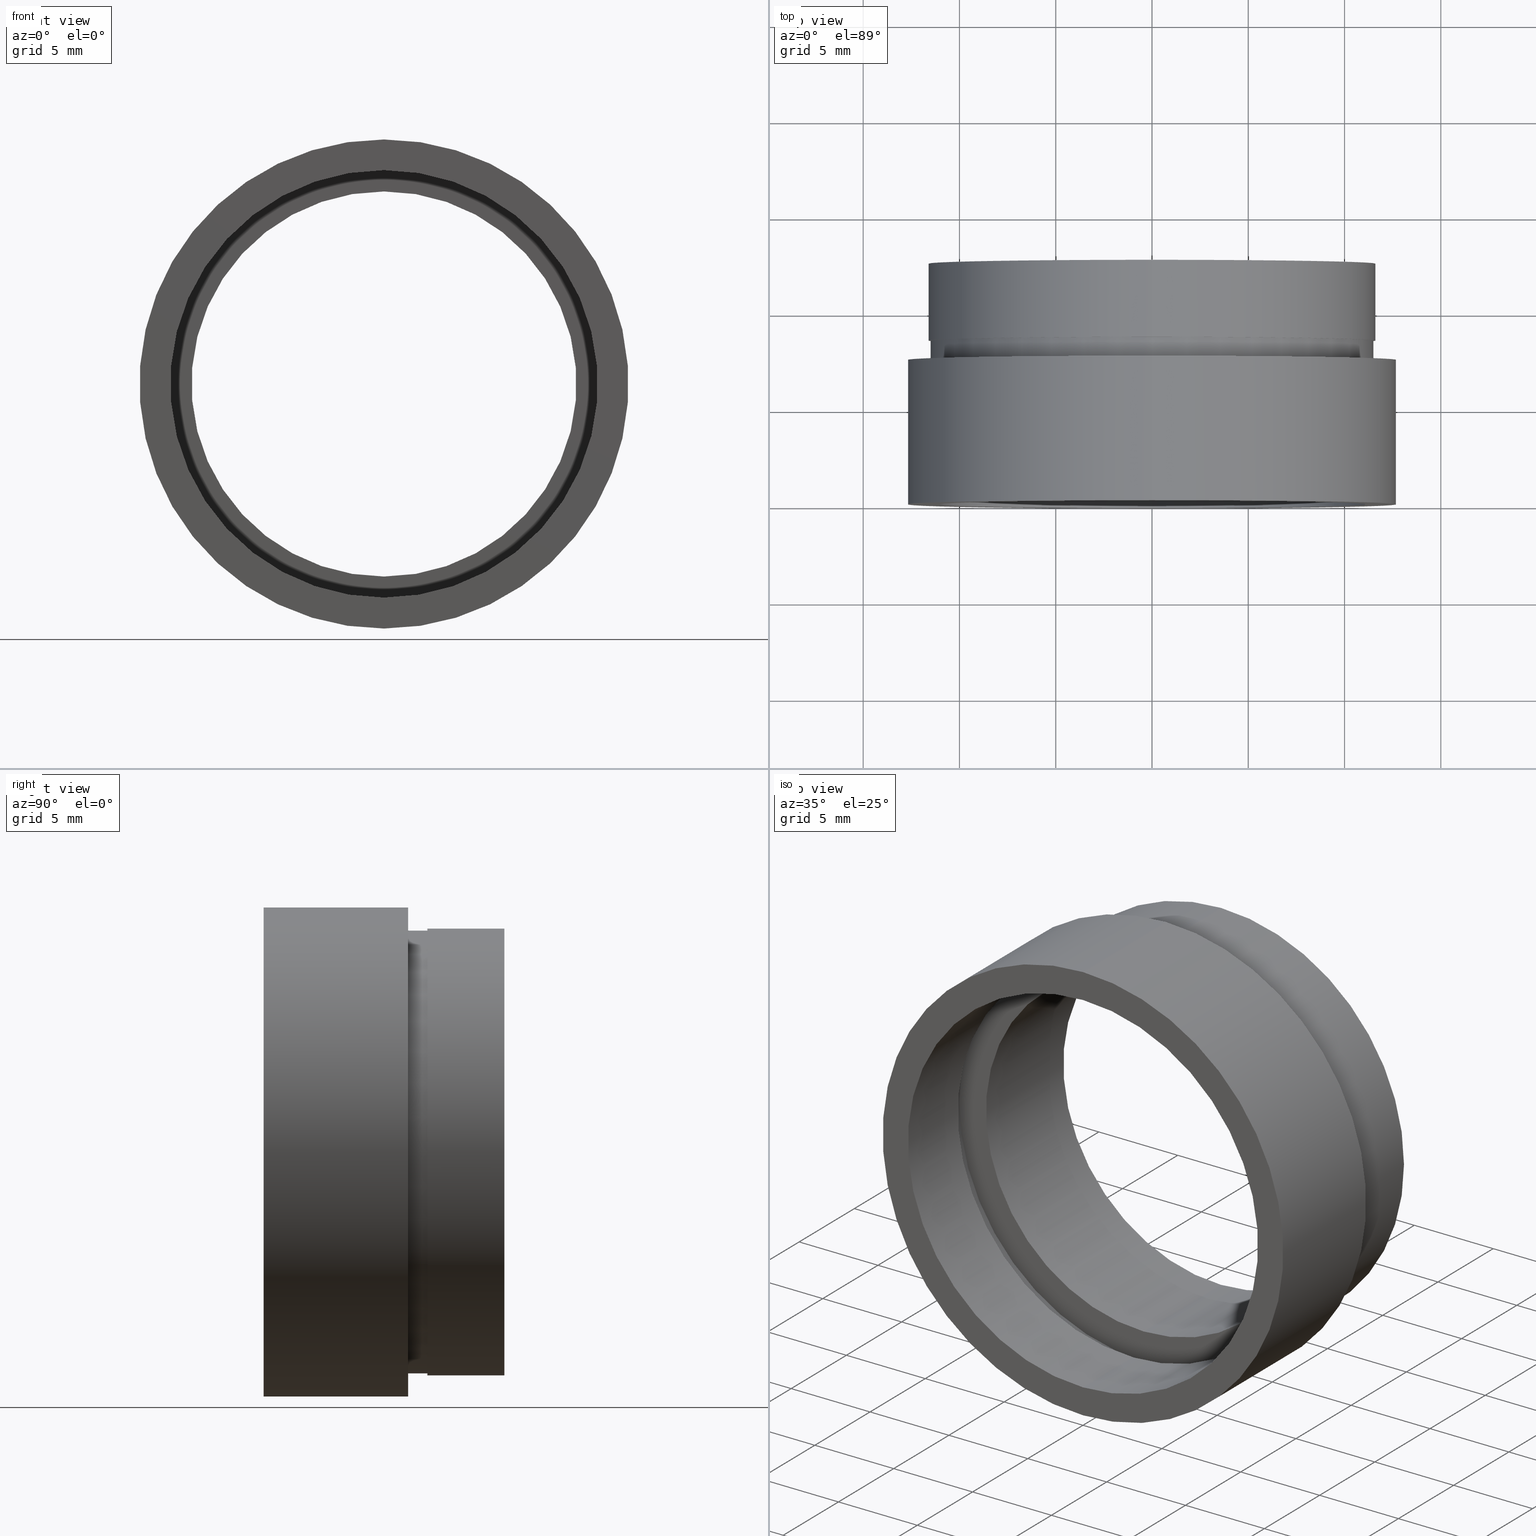
[diagram: canonical four-view strip — front | top / right | iso, engineering-drawing reading convention]
A machine part, canonical four-view strip (front | top / right | iso — engineering-drawing reading convention). The complete STEP part file that produces these views, byte-faithful:
ISO-10303-21;
HEADER;
FILE_DESCRIPTION (( 'STEP AP214' ),
    '1' );
FILE_NAME ('503060.STEP',
    '2019-09-09T02:10:41',
    ( '' ),
    ( '' ),
    'SwSTEP 2.0',
    'SolidWorks 2016',
    '' );
FILE_SCHEMA (( 'AUTOMOTIVE_DESIGN' ));
ENDSEC;

DATA;
#1 = CARTESIAN_POINT ( 'NONE',  ( 0.0000000000000000000, 8.499999999999980500, 0.0000000000000000000 ) ) ;
#2 = ORIENTED_EDGE ( 'NONE', *, *, #131, .T. ) ;
#3 = CARTESIAN_POINT ( 'NONE',  ( 0.0000000000000000000, 12.49999999999998400, 10.00000000000002000 ) ) ;
#4 = SURFACE_STYLE_FILL_AREA ( #146 ) ;
#5 = CARTESIAN_POINT ( 'NONE',  ( 0.0000000000000000000, 5.499999999999976900, 0.0000000000000000000 ) ) ;
#6 = DIRECTION ( 'NONE',  ( 0.0000000000000000000, 0.0000000000000000000, 1.000000000000000000 ) ) ;
#7 = EDGE_CURVE ( 'NONE', #326, #534, #306, .T. ) ;
#8 = CARTESIAN_POINT ( 'NONE',  ( 1.555301434917141000E-015, -2.775557561562891400E-014, -12.70000000000002100 ) ) ;
#9 = ORIENTED_EDGE ( 'NONE', *, *, #207, .T. ) ;
#10 = DIRECTION ( 'NONE',  ( 0.0000000000000000000, 0.0000000000000000000, 1.000000000000000000 ) ) ;
#11 = DIRECTION ( 'NONE',  ( -0.0000000000000000000, 1.000000000000000000, -0.0000000000000000000 ) ) ;
#12 = PRODUCT_DEFINITION ( 'δ֪', '', #205, #280 ) ;
#13 = UNCERTAINTY_MEASURE_WITH_UNIT (LENGTH_MEASURE( 1.000000000000000100E-005 ), #67, 'distance_accuracy_value', 'NONE');
#14 =( NAMED_UNIT ( * ) PLANE_ANGLE_UNIT ( ) SI_UNIT ( $, .RADIAN. ) );
#15 = EDGE_LOOP ( 'NONE', ( #272, #212 ) ) ;
#16 = AXIS2_PLACEMENT_3D ( 'NONE', #159, #504, #552 ) ;
#17 = ORIENTED_EDGE ( 'NONE', *, *, #617, .F. ) ;
#18 = CARTESIAN_POINT ( 'NONE',  ( 1.555301434917140800E-015, 7.499999999999978700, -12.70000000000001900 ) ) ;
#19 = EDGE_CURVE ( 'NONE', #468, #500, #156, .T. ) ;
#20 = CARTESIAN_POINT ( 'NONE',  ( 0.0000000000000000000, 4.499999999999976000, 0.0000000000000000000 ) ) ;
#21 = DIRECTION ( 'NONE',  ( 0.0000000000000000000, 0.0000000000000000000, 1.000000000000000000 ) ) ;
#22 = ORIENTED_EDGE ( 'NONE', *, *, #31, .F. ) ;
#23 = AXIS2_PLACEMENT_3D ( 'NONE', #346, #95, #395 ) ;
#24 = APPLICATION_PROTOCOL_DEFINITION ( 'draft international standard', 'automotive_design', 1998, #371 ) ;
#25 = EDGE_CURVE ( 'NONE', #532, #213, #270, .T. ) ;
#26 = ORIENTED_EDGE ( 'NONE', *, *, #606, .F. ) ;
#27 = CYLINDRICAL_SURFACE ( 'NONE', #613, 11.50000000000001800 ) ;
#28 = ORIENTED_EDGE ( 'NONE', *, *, #402, .T. ) ;
#29 = CARTESIAN_POINT ( 'NONE',  ( 0.0000000000000000000, 161.3761669434274500, 0.0000000000000000000 ) ) ;
#30 = STYLED_ITEM ( 'NONE', ( #161 ), #393 ) ;
#31 = EDGE_CURVE ( 'NONE', #213, #334, #287, .T. ) ;
#32 = ORIENTED_EDGE ( 'NONE', *, *, #366, .T. ) ;
#33 = ORIENTED_EDGE ( 'NONE', *, *, #537, .T. ) ;
#34 = STYLED_ITEM ( 'NONE', ( #85 ), #144 ) ;
#35 = DIRECTION ( 'NONE',  ( -0.0000000000000000000, 1.000000000000000000, -0.0000000000000000000 ) ) ;
#36 = MECHANICAL_DESIGN_GEOMETRIC_PRESENTATION_REPRESENTATION (  '', ( #258 ), #316 ) ;
#37 = EDGE_LOOP ( 'NONE', ( #439, #474 ) ) ;
#38 = ORIENTED_EDGE ( 'NONE', *, *, #207, .F. ) ;
#39 = SURFACE_SIDE_STYLE ('',( #57 ) ) ;
#40 = EDGE_LOOP ( 'NONE', ( #392, #56, #572, #463 ) ) ;
#41 = SURFACE_STYLE_USAGE ( .BOTH. , #252 ) ;
#42 = FACE_OUTER_BOUND ( 'NONE', #352, .T. ) ;
#43 = EDGE_CURVE ( 'NONE', #534, #543, #525, .T. ) ;
#44 = PLANE ( 'NONE',  #245 ) ;
#45 = ADVANCED_FACE ( 'NONE', ( #398, #414 ), #554, .F. ) ;
#46 = CIRCLE ( 'NONE', #415, 11.60000000000001700 ) ;
#47 = CARTESIAN_POINT ( 'NONE',  ( 1.224646799147355400E-015, 12.49999999999998400, -10.00000000000002000 ) ) ;
#48 = VERTEX_POINT ( 'NONE', #610 ) ;
#49 = CARTESIAN_POINT ( 'NONE',  ( 0.0000000000000000000, 8.499999999999980500, 0.0000000000000000000 ) ) ;
#50 = DIRECTION ( 'NONE',  ( -0.0000000000000000000, 1.000000000000000000, -0.0000000000000000000 ) ) ;
#51 = CYLINDRICAL_SURFACE ( 'NONE', #136, 10.00000000000002000 ) ;
#52 =( GEOMETRIC_REPRESENTATION_CONTEXT ( 3 ) GLOBAL_UNCERTAINTY_ASSIGNED_CONTEXT ( ( #581 ) ) GLOBAL_UNIT_ASSIGNED_CONTEXT ( ( #560, #76, #235 ) ) REPRESENTATION_CONTEXT ( 'NONE', 'WORKASPACE' ) );
#53 = ORIENTED_EDGE ( 'NONE', *, *, #399, .F. ) ;
#54 = CARTESIAN_POINT ( 'NONE',  ( 0.0000000000000000000, 161.3761669434274500, 0.0000000000000000000 ) ) ;
#55 = ORIENTED_EDGE ( 'NONE', *, *, #43, .F. ) ;
#56 = ORIENTED_EDGE ( 'NONE', *, *, #63, .T. ) ;
#57 = SURFACE_STYLE_FILL_AREA ( #493 ) ;
#58 = FILL_AREA_STYLE ('',( #462 ) ) ;
#59 = CARTESIAN_POINT ( 'NONE',  ( 0.0000000000000000000, 161.3761669434274500, 11.70000000000001900 ) ) ;
#60 = COLOUR_RGB ( '',1.000000000000000000, 1.000000000000000000, 1.000000000000000000 ) ;
#61 = ORIENTED_EDGE ( 'NONE', *, *, #99, .F. ) ;
#62 = STYLED_ITEM ( 'NONE', ( #622 ), #531 ) ;
#63 = EDGE_CURVE ( 'NONE', #248, #404, #297, .T. ) ;
#64 = DIRECTION ( 'NONE',  ( -0.0000000000000000000, 1.000000000000000000, -0.0000000000000000000 ) ) ;
#65 = VECTOR ( 'NONE', #453, 1000.000000000000000 ) ;
#66 = AXIS2_PLACEMENT_3D ( 'NONE', #379, #327, #73 ) ;
#67 =( LENGTH_UNIT ( ) NAMED_UNIT ( * ) SI_UNIT ( .MILLI., .METRE. ) );
#68 = DIRECTION ( 'NONE',  ( 0.0000000000000000000, -0.0000000000000000000, -1.000000000000000000 ) ) ;
#69 = CIRCLE ( 'NONE', #66, 12.70000000000002100 ) ;
#70 = DIRECTION ( 'NONE',  ( -0.0000000000000000000, 1.000000000000000000, -0.0000000000000000000 ) ) ;
#71 = COLOUR_RGB ( '',1.000000000000000000, 1.000000000000000000, 1.000000000000000000 ) ;
#72 = EDGE_LOOP ( 'NONE', ( #481, #177, #32, #75 ) ) ;
#73 = DIRECTION ( 'NONE',  ( 0.0000000000000000000, 0.0000000000000000000, 1.000000000000000000 ) ) ;
#74 = EDGE_LOOP ( 'NONE', ( #618, #103, #320, #298 ) ) ;
#75 = ORIENTED_EDGE ( 'NONE', *, *, #487, .T. ) ;
#76 =( NAMED_UNIT ( * ) PLANE_ANGLE_UNIT ( ) SI_UNIT ( $, .RADIAN. ) );
#77 = AXIS2_PLACEMENT_3D ( 'NONE', #369, #167, #513 ) ;
#78 = COLOUR_RGB ( '',1.000000000000000000, 1.000000000000000000, 1.000000000000000000 ) ;
#79 = CARTESIAN_POINT ( 'NONE',  ( 0.0000000000000000000, 161.3761669434274500, 10.00000000000002000 ) ) ;
#80 = EDGE_LOOP ( 'NONE', ( #219, #587, #424, #55 ) ) ;
#81 = DIRECTION ( 'NONE',  ( -0.0000000000000000000, 1.000000000000000000, -0.0000000000000000000 ) ) ;
#82 = PRESENTATION_STYLE_ASSIGNMENT (( #218 ) ) ;
#83 = DIRECTION ( 'NONE',  ( 0.0000000000000000000, 0.0000000000000000000, 1.000000000000000000 ) ) ;
#84 = FACE_BOUND ( 'NONE', #37, .T. ) ;
#85 = PRESENTATION_STYLE_ASSIGNMENT (( #124 ) ) ;
#86 = CIRCLE ( 'NONE', #351, 10.00000000000002000 ) ;
#87 = ORIENTED_EDGE ( 'NONE', *, *, #261, .F. ) ;
#88 = ORIENTED_EDGE ( 'NONE', *, *, #485, .T. ) ;
#89 = SURFACE_STYLE_USAGE ( .BOTH. , #480 ) ;
#90 = EDGE_CURVE ( 'NONE', #325, #543, #373, .T. ) ;
#91 = EDGE_CURVE ( 'NONE', #550, #500, #226, .T. ) ;
#92 = DIRECTION ( 'NONE',  ( -0.0000000000000000000, 1.000000000000000000, -0.0000000000000000000 ) ) ;
#93 = DIRECTION ( 'NONE',  ( 0.0000000000000000000, 0.0000000000000000000, 1.000000000000000000 ) ) ;
#94 = ORIENTED_EDGE ( 'NONE', *, *, #461, .T. ) ;
#95 = DIRECTION ( 'NONE',  ( -0.0000000000000000000, 1.000000000000000000, -0.0000000000000000000 ) ) ;
#96 = DIRECTION ( 'NONE',  ( -0.0000000000000000000, 1.000000000000000000, -0.0000000000000000000 ) ) ;
#97 = STYLED_ITEM ( 'NONE', ( #508 ), #442 ) ;
#98 = ADVANCED_FACE ( 'NONE', ( #338, #450 ), #220, .F. ) ;
#99 = EDGE_CURVE ( 'NONE', #580, #340, #592, .T. ) ;
#100 = DIRECTION ( 'NONE',  ( -0.0000000000000000000, 1.000000000000000000, -0.0000000000000000000 ) ) ;
#101 = CYLINDRICAL_SURFACE ( 'NONE', #482, 11.70000000000001900 ) ;
#102 = EDGE_CURVE ( 'NONE', #500, #468, #247, .T. ) ;
#103 = ORIENTED_EDGE ( 'NONE', *, *, #261, .T. ) ;
#104 = ADVANCED_FACE ( 'NONE', ( #511, #115 ), #230, .F. ) ;
#105 =( NAMED_UNIT ( * ) PLANE_ANGLE_UNIT ( ) SI_UNIT ( $, .RADIAN. ) );
#106 = FACE_BOUND ( 'NONE', #547, .T. ) ;
#107 = AXIS2_PLACEMENT_3D ( 'NONE', #406, #267, #464 ) ;
#108 = EDGE_LOOP ( 'NONE', ( #416, #241, #427, #266 ) ) ;
#109 = DIRECTION ( 'NONE',  ( -0.0000000000000000000, 1.000000000000000000, -0.0000000000000000000 ) ) ;
#110 = PRODUCT_CONTEXT ( 'NONE', #371, 'mechanical' ) ;
#111 = DIRECTION ( 'NONE',  ( -0.0000000000000000000, 1.000000000000000000, -0.0000000000000000000 ) ) ;
#112 =( NAMED_UNIT ( * ) PLANE_ANGLE_UNIT ( ) SI_UNIT ( $, .RADIAN. ) );
#113 = CIRCLE ( 'NONE', #384, 11.10000000000001700 ) ;
#114 =( LENGTH_UNIT ( ) NAMED_UNIT ( * ) SI_UNIT ( .MILLI., .METRE. ) );
#115 = FACE_OUTER_BOUND ( 'NONE', #15, .T. ) ;
#116 = COLOUR_RGB ( '',1.000000000000000000, 1.000000000000000000, 1.000000000000000000 ) ;
#117 = PRESENTATION_LAYER_ASSIGNMENT (  '', '', ( #281 ) ) ;
#118 = DIRECTION ( 'NONE',  ( 0.0000000000000000000, 0.0000000000000000000, 1.000000000000000000 ) ) ;
#119 = EDGE_LOOP ( 'NONE', ( #563, #386, #174, #157 ) ) ;
#120 = DIRECTION ( 'NONE',  ( 0.0000000000000000000, -1.000000000000000000, 0.0000000000000000000 ) ) ;
#121 = SURFACE_STYLE_USAGE ( .BOTH. , #608 ) ;
#122 = DIRECTION ( 'NONE',  ( 0.0000000000000000000, 0.0000000000000000000, 1.000000000000000000 ) ) ;
#123 = EDGE_CURVE ( 'NONE', #550, #549, #69, .T. ) ;
#124 = SURFACE_STYLE_USAGE ( .BOTH. , #423 ) ;
#125 = LINE ( 'NONE', #471, #621 ) ;
#126 = ORIENTED_EDGE ( 'NONE', *, *, #123, .T. ) ;
#127 = DIRECTION ( 'NONE',  ( 0.0000000000000000000, 0.0000000000000000000, 1.000000000000000000 ) ) ;
#128 = VERTEX_POINT ( 'NONE', #335 ) ;
#129 = CARTESIAN_POINT ( 'NONE',  ( 0.0000000000000000000, 7.499999999999978700, 0.0000000000000000000 ) ) ;
#130 = AXIS2_PLACEMENT_3D ( 'NONE', #313, #604, #260 ) ;
#131 = EDGE_CURVE ( 'NONE', #128, #360, #555, .T. ) ;
#132 = DIRECTION ( 'NONE',  ( 0.0000000000000000000, 0.0000000000000000000, 1.000000000000000000 ) ) ;
#133 = DIRECTION ( 'NONE',  ( -0.0000000000000000000, 1.000000000000000000, -0.0000000000000000000 ) ) ;
#134 = DIRECTION ( 'NONE',  ( 0.0000000000000000000, 0.0000000000000000000, 1.000000000000000000 ) ) ;
#135 =( NAMED_UNIT ( * ) SI_UNIT ( $, .STERADIAN. ) SOLID_ANGLE_UNIT ( ) );
#136 = AXIS2_PLACEMENT_3D ( 'NONE', #501, #208, #551 ) ;
#137 = FACE_OUTER_BOUND ( 'NONE', #457, .T. ) ;
#138 = CIRCLE ( 'NONE', #277, 10.00000000000002000 ) ;
#139 = VERTEX_POINT ( 'NONE', #521 ) ;
#140 = EDGE_LOOP ( 'NONE', ( #94, #229 ) ) ;
#141 = UNCERTAINTY_MEASURE_WITH_UNIT (LENGTH_MEASURE( 1.000000000000000100E-005 ), #466, 'distance_accuracy_value', 'NONE');
#142 = CARTESIAN_POINT ( 'NONE',  ( 0.0000000000000000000, 7.499999999999978700, 0.0000000000000000000 ) ) ;
#143 = AXIS2_PLACEMENT_3D ( 'NONE', #570, #283, #615 ) ;
#144 = ADVANCED_FACE ( 'NONE', ( #524 ), #577, .F. ) ;
#145 = EDGE_CURVE ( 'NONE', #326, #325, #125, .T. ) ;
#146 = FILL_AREA_STYLE ('',( #200 ) ) ;
#147 = MECHANICAL_DESIGN_GEOMETRIC_PRESENTATION_REPRESENTATION (  '', ( #34 ), #52 ) ;
#148 =( NAMED_UNIT ( * ) PLANE_ANGLE_UNIT ( ) SI_UNIT ( $, .RADIAN. ) );
#149 = VECTOR ( 'NONE', #409, 1000.000000000000000 ) ;
#150 = CARTESIAN_POINT ( 'NONE',  ( 0.0000000000000000000, 161.3761669434274500, 0.0000000000000000000 ) ) ;
#151 =( GEOMETRIC_REPRESENTATION_CONTEXT ( 3 ) GLOBAL_UNCERTAINTY_ASSIGNED_CONTEXT ( ( #311 ) ) GLOBAL_UNIT_ASSIGNED_CONTEXT ( ( #246, #249, #299 ) ) REPRESENTATION_CONTEXT ( 'NONE', 'WORKASPACE' ) );
#152 = ADVANCED_FACE ( 'NONE', ( #106, #503 ), #515, .F. ) ;
#153 = DIRECTION ( 'NONE',  ( -0.0000000000000000000, 1.000000000000000000, -0.0000000000000000000 ) ) ;
#154 = AXIS2_PLACEMENT_3D ( 'NONE', #319, #64, #510 ) ;
#155 = SURFACE_SIDE_STYLE ('',( #223 ) ) ;
#156 = CIRCLE ( 'NONE', #77, 12.70000000000001900 ) ;
#157 = ORIENTED_EDGE ( 'NONE', *, *, #301, .F. ) ;
#158 = DIRECTION ( 'NONE',  ( 0.0000000000000000000, 0.0000000000000000000, 1.000000000000000000 ) ) ;
#159 = CARTESIAN_POINT ( 'NONE',  ( 0.0000000000000000000, 4.499999999999976000, 0.0000000000000000000 ) ) ;
#160 = CARTESIAN_POINT ( 'NONE',  ( 1.555301434917141000E-015, 161.3761669434274500, -12.70000000000002100 ) ) ;
#161 = PRESENTATION_STYLE_ASSIGNMENT (( #533 ) ) ;
#162 = FILL_AREA_STYLE ('',( #410 ) ) ;
#163 = SURFACE_STYLE_FILL_AREA ( #182 ) ;
#164 =( GEOMETRIC_REPRESENTATION_CONTEXT ( 3 ) GLOBAL_UNCERTAINTY_ASSIGNED_CONTEXT ( ( #197 ) ) GLOBAL_UNIT_ASSIGNED_CONTEXT ( ( #459, #105, #544 ) ) REPRESENTATION_CONTEXT ( 'NONE', 'WORKASPACE' ) );
#165 = ORIENTED_EDGE ( 'NONE', *, *, #273, .F. ) ;
#166 =( NAMED_UNIT ( * ) PLANE_ANGLE_UNIT ( ) SI_UNIT ( $, .RADIAN. ) );
#167 = DIRECTION ( 'NONE',  ( -0.0000000000000000000, 1.000000000000000000, -0.0000000000000000000 ) ) ;
#168 = EDGE_LOOP ( 'NONE', ( #236, #582 ) ) ;
#169 = SURFACE_STYLE_USAGE ( .BOTH. , #412 ) ;
#170 = DIRECTION ( 'NONE',  ( -0.0000000000000000000, 1.000000000000000000, -0.0000000000000000000 ) ) ;
#171 =( NAMED_UNIT ( * ) PLANE_ANGLE_UNIT ( ) SI_UNIT ( $, .RADIAN. ) );
#172 = CARTESIAN_POINT ( 'NONE',  ( 11.10000000000001700, 4.499999999999983100, 0.0000000000000000000 ) ) ;
#173 = ORIENTED_EDGE ( 'NONE', *, *, #573, .T. ) ;
#174 = ORIENTED_EDGE ( 'NONE', *, *, #99, .T. ) ;
#175 = AXIS2_PLACEMENT_3D ( 'NONE', #54, #153, #562 ) ;
#176 = SURFACE_STYLE_FILL_AREA ( #548 ) ;
#177 = ORIENTED_EDGE ( 'NONE', *, *, #461, .F. ) ;
#178 = DIRECTION ( 'NONE',  ( -0.0000000000000000000, 1.000000000000000000, -0.0000000000000000000 ) ) ;
#179 = CARTESIAN_POINT ( 'NONE',  ( 11.50000000000001800, 8.499999999999987600, 0.0000000000000000000 ) ) ;
#180 = CYLINDRICAL_SURFACE ( 'NONE', #382, 11.10000000000001700 ) ;
#181 = AXIS2_PLACEMENT_3D ( 'NONE', #129, #385, #134 ) ;
#182 = FILL_AREA_STYLE ('',( #418 ) ) ;
#183 = ORIENTED_EDGE ( 'NONE', *, *, #91, .F. ) ;
#184 = CARTESIAN_POINT ( 'NONE',  ( 1.432836755002405700E-015, 5.499999999999976900, -11.70000000000001900 ) ) ;
#185 = AXIS2_PLACEMENT_3D ( 'NONE', #467, #178, #433 ) ;
#186 = FILL_AREA_STYLE ('',( #438 ) ) ;
#187 =( NAMED_UNIT ( * ) PLANE_ANGLE_UNIT ( ) SI_UNIT ( $, .RADIAN. ) );
#188 =( GEOMETRIC_REPRESENTATION_CONTEXT ( 3 ) GLOBAL_UNCERTAINTY_ASSIGNED_CONTEXT ( ( #486 ) ) GLOBAL_UNIT_ASSIGNED_CONTEXT ( ( #499, #14, #600 ) ) REPRESENTATION_CONTEXT ( 'NONE', 'WORKASPACE' ) );
#189 = CARTESIAN_POINT ( 'NONE',  ( 0.0000000000000000000, 161.3761669434274500, 0.0000000000000000000 ) ) ;
#190 = SHAPE_DEFINITION_REPRESENTATION ( #445, #531 ) ;
#191 = ORIENTED_EDGE ( 'NONE', *, *, #399, .T. ) ;
#192 = ORIENTED_EDGE ( 'NONE', *, *, #353, .F. ) ;
#193 = DIRECTION ( 'NONE',  ( -0.0000000000000000000, 1.000000000000000000, -0.0000000000000000000 ) ) ;
#194 = FACE_OUTER_BOUND ( 'NONE', #514, .T. ) ;
#195 = MECHANICAL_DESIGN_GEOMETRIC_PRESENTATION_REPRESENTATION (  '', ( #221 ), #292 ) ;
#196 = EDGE_LOOP ( 'NONE', ( #565, #440 ) ) ;
#197 = UNCERTAINTY_MEASURE_WITH_UNIT (LENGTH_MEASURE( 1.000000000000000100E-005 ), #459, 'distance_accuracy_value', 'NONE');
#198 = DIRECTION ( 'NONE',  ( -0.0000000000000000000, 1.000000000000000000, -0.0000000000000000000 ) ) ;
#199 = ADVANCED_FACE ( 'NONE', ( #263 ), #561, .T. ) ;
#200 = FILL_AREA_STYLE_COLOUR ( '', #429 ) ;
#201 =( LENGTH_UNIT ( ) NAMED_UNIT ( * ) SI_UNIT ( .MILLI., .METRE. ) );
#202 = CIRCLE ( 'NONE', #448, 11.10000000000001700 ) ;
#203 = ORIENTED_EDGE ( 'NONE', *, *, #102, .F. ) ;
#204 = CARTESIAN_POINT ( 'NONE',  ( 0.0000000000000000000, 161.3761669434274500, 0.0000000000000000000 ) ) ;
#205 = PRODUCT_DEFINITION_FORMATION_WITH_SPECIFIED_SOURCE ( '�κ�', '', #540, .NOT_KNOWN. ) ;
#206 = FILL_AREA_STYLE_COLOUR ( '', #583 ) ;
#207 = EDGE_CURVE ( 'NONE', #210, #48, #539, .T. ) ;
#208 = DIRECTION ( 'NONE',  ( -0.0000000000000000000, 1.000000000000000000, -0.0000000000000000000 ) ) ;
#209 = ADVANCED_FACE ( 'NONE', ( #489 ), #396, .F. ) ;
#210 = VERTEX_POINT ( 'NONE', #242 ) ;
#211 = CARTESIAN_POINT ( 'NONE',  ( 0.0000000000000000000, 8.499999999999980500, 11.60000000000001700 ) ) ;
#212 = ORIENTED_EDGE ( 'NONE', *, *, #301, .T. ) ;
#213 = VERTEX_POINT ( 'NONE', #526 ) ;
#214 = CARTESIAN_POINT ( 'NONE',  ( 1.359357947053564100E-015, -2.775557561562891400E-014, -11.10000000000001700 ) ) ;
#215 = MECHANICAL_DESIGN_GEOMETRIC_PRESENTATION_REPRESENTATION (  '', ( #281 ), #188 ) ;
#216 = CARTESIAN_POINT ( 'NONE',  ( 1.420590287010931700E-015, 8.499999999999980500, -11.60000000000001700 ) ) ;
#217 = AXIS2_PLACEMENT_3D ( 'NONE', #172, #120, #381 ) ;
#218 = SURFACE_STYLE_USAGE ( .BOTH. , #155 ) ;
#219 = ORIENTED_EDGE ( 'NONE', *, *, #7, .F. ) ;
#220 = PLANE ( 'NONE',  #390 ) ;
#221 = STYLED_ITEM ( 'NONE', ( #291 ), #256 ) ;
#222 =( NAMED_UNIT ( * ) SI_UNIT ( $, .STERADIAN. ) SOLID_ANGLE_UNIT ( ) );
#223 = SURFACE_STYLE_FILL_AREA ( #58 ) ;
#224 = LINE ( 'NONE', #484, #238 ) ;
#225 = DIRECTION ( 'NONE',  ( -0.0000000000000000000, 1.000000000000000000, -0.0000000000000000000 ) ) ;
#226 = LINE ( 'NONE', #428, #569 ) ;
#227 = MECHANICAL_DESIGN_GEOMETRIC_PRESENTATION_REPRESENTATION (  '', ( #97 ), #345 ) ;
#228 = CIRCLE ( 'NONE', #623, 10.00000000000002000 ) ;
#229 = ORIENTED_EDGE ( 'NONE', *, *, #293, .T. ) ;
#230 = PLANE ( 'NONE',  #436 ) ;
#231 = ORIENTED_EDGE ( 'NONE', *, *, #487, .F. ) ;
#232 = CARTESIAN_POINT ( 'NONE',  ( 0.0000000000000000000, 0.0000000000000000000, 0.0000000000000000000 ) ) ;
#233 = CARTESIAN_POINT ( 'NONE',  ( 0.0000000000000000000, 161.3761669434274500, 11.60000000000001700 ) ) ;
#234 = CARTESIAN_POINT ( 'NONE',  ( 0.0000000000000000000, 5.499999999999976900, 0.0000000000000000000 ) ) ;
#235 =( NAMED_UNIT ( * ) SI_UNIT ( $, .STERADIAN. ) SOLID_ANGLE_UNIT ( ) );
#236 = ORIENTED_EDGE ( 'NONE', *, *, #102, .T. ) ;
#237 = CARTESIAN_POINT ( 'NONE',  ( 0.0000000000000000000, 8.499999999999980500, 11.50000000000001800 ) ) ;
#238 = VECTOR ( 'NONE', #294, 1000.000000000000000 ) ;
#239 = VECTOR ( 'NONE', #111, 1000.000000000000000 ) ;
#240 = DIRECTION ( 'NONE',  ( -0.0000000000000000000, 1.000000000000000000, -0.0000000000000000000 ) ) ;
#241 = ORIENTED_EDGE ( 'NONE', *, *, #25, .T. ) ;
#242 = CARTESIAN_POINT ( 'NONE',  ( 1.408343819019458300E-015, 7.499999999999978700, -11.50000000000001800 ) ) ;
#243 = UNCERTAINTY_MEASURE_WITH_UNIT (LENGTH_MEASURE( 1.000000000000000100E-005 ), #201, 'distance_accuracy_value', 'NONE');
#244 = DIRECTION ( 'NONE',  ( 0.0000000000000000000, 0.0000000000000000000, 1.000000000000000000 ) ) ;
#245 = AXIS2_PLACEMENT_3D ( 'NONE', #441, #589, #585 ) ;
#246 =( LENGTH_UNIT ( ) NAMED_UNIT ( * ) SI_UNIT ( .MILLI., .METRE. ) );
#247 = CIRCLE ( 'NONE', #143, 12.70000000000001900 ) ;
#248 = VERTEX_POINT ( 'NONE', #289 ) ;
#249 =( NAMED_UNIT ( * ) PLANE_ANGLE_UNIT ( ) SI_UNIT ( $, .RADIAN. ) );
#250 = AXIS2_PLACEMENT_3D ( 'NONE', #232, #21, #420 ) ;
#251 = ADVANCED_FACE ( 'NONE', ( #137 ), #262, .T. ) ;
#252 = SURFACE_SIDE_STYLE ('',( #4 ) ) ;
#253 = EDGE_CURVE ( 'NONE', #422, #210, #332, .T. ) ;
#254 = DIRECTION ( 'NONE',  ( 0.0000000000000000000, 0.0000000000000000000, 1.000000000000000000 ) ) ;
#255 = SURFACE_STYLE_FILL_AREA ( #470 ) ;
#256 = ADVANCED_FACE ( 'NONE', ( #488 ), #347, .F. ) ;
#257 = EDGE_LOOP ( 'NONE', ( #394, #611 ) ) ;
#258 = STYLED_ITEM ( 'NONE', ( #304 ), #595 ) ;
#259 = AXIS2_PLACEMENT_3D ( 'NONE', #476, #528, #244 ) ;
#260 = DIRECTION ( 'NONE',  ( 0.0000000000000000000, 0.0000000000000000000, 1.000000000000000000 ) ) ;
#261 = EDGE_CURVE ( 'NONE', #549, #550, #472, .T. ) ;
#262 = CYLINDRICAL_SURFACE ( 'NONE', #259, 12.70000000000002100 ) ;
#263 = FACE_OUTER_BOUND ( 'NONE', #74, .T. ) ;
#264 = EDGE_LOOP ( 'NONE', ( #556, #432 ) ) ;
#265 = DIRECTION ( 'NONE',  ( 0.0000000000000000000, 0.0000000000000000000, 1.000000000000000000 ) ) ;
#266 = ORIENTED_EDGE ( 'NONE', *, *, #366, .F. ) ;
#267 = DIRECTION ( 'NONE',  ( -0.0000000000000000000, 1.000000000000000000, 0.0000000000000000000 ) ) ;
#268 = APPLICATION_PROTOCOL_DEFINITION ( 'draft international standard', 'automotive_design', 1998, #507 ) ;
#269 = DIRECTION ( 'NONE',  ( 0.0000000000000000000, 0.0000000000000000000, 1.000000000000000000 ) ) ;
#270 = LINE ( 'NONE', #315, #541 ) ;
#271 =( NAMED_UNIT ( * ) SI_UNIT ( $, .STERADIAN. ) SOLID_ANGLE_UNIT ( ) );
#272 = ORIENTED_EDGE ( 'NONE', *, *, #617, .T. ) ;
#273 = EDGE_CURVE ( 'NONE', #343, #48, #318, .T. ) ;
#274 =( NAMED_UNIT ( * ) SI_UNIT ( $, .STERADIAN. ) SOLID_ANGLE_UNIT ( ) );
#275 = CARTESIAN_POINT ( 'NONE',  ( 0.0000000000000000000, 5.499999999999976900, 0.0000000000000000000 ) ) ;
#276 = DIRECTION ( 'NONE',  ( -0.0000000000000000000, 1.000000000000000000, -0.0000000000000000000 ) ) ;
#277 = AXIS2_PLACEMENT_3D ( 'NONE', #545, #50, #158 ) ;
#278 = DIRECTION ( 'NONE',  ( -0.0000000000000000000, 1.000000000000000000, -0.0000000000000000000 ) ) ;
#279 = ORIENTED_EDGE ( 'NONE', *, *, #584, .T. ) ;
#280 = PRODUCT_DEFINITION_CONTEXT ( 'detailed design', #507, 'design' ) ;
#281 = STYLED_ITEM ( 'NONE', ( #425 ), #538 ) ;
#282 = EDGE_CURVE ( 'NONE', #404, #360, #568, .T. ) ;
#283 = DIRECTION ( 'NONE',  ( -0.0000000000000000000, 1.000000000000000000, -0.0000000000000000000 ) ) ;
#284 = SURFACE_STYLE_FILL_AREA ( #186 ) ;
#285 = CARTESIAN_POINT ( 'NONE',  ( 0.0000000000000000000, 12.49999999999998400, 11.60000000000001700 ) ) ;
#286 = AXIS2_PLACEMENT_3D ( 'NONE', #1, #81, #435 ) ;
#287 = CIRCLE ( 'NONE', #16, 11.10000000000001700 ) ;
#288 = ORIENTED_EDGE ( 'NONE', *, *, #391, .T. ) ;
#289 = CARTESIAN_POINT ( 'NONE',  ( 1.224646799147355400E-015, 5.499999999999976900, -10.00000000000002000 ) ) ;
#290 = AXIS2_PLACEMENT_3D ( 'NONE', #142, #535, #490 ) ;
#291 = PRESENTATION_STYLE_ASSIGNMENT (( #89 ) ) ;
#292 =( GEOMETRIC_REPRESENTATION_CONTEXT ( 3 ) GLOBAL_UNCERTAINTY_ASSIGNED_CONTEXT ( ( #444 ) ) GLOBAL_UNIT_ASSIGNED_CONTEXT ( ( #383, #187, #135 ) ) REPRESENTATION_CONTEXT ( 'NONE', 'WORKASPACE' ) );
#293 = EDGE_CURVE ( 'NONE', #532, #520, #113, .T. ) ;
#294 = DIRECTION ( 'NONE',  ( -0.0000000000000000000, 1.000000000000000000, -0.0000000000000000000 ) ) ;
#295 = ADVANCED_FACE ( 'NONE', ( #509 ), #296, .T. ) ;
#296 = CYLINDRICAL_SURFACE ( 'NONE', #477, 11.50000000000001800 ) ;
#297 = LINE ( 'NONE', #411, #239 ) ;
#298 = ORIENTED_EDGE ( 'NONE', *, *, #19, .F. ) ;
#299 =( NAMED_UNIT ( * ) SI_UNIT ( $, .STERADIAN. ) SOLID_ANGLE_UNIT ( ) );
#300 = CARTESIAN_POINT ( 'NONE',  ( 0.0000000000000000000, 7.499999999999978700, 11.50000000000001800 ) ) ;
#301 = EDGE_CURVE ( 'NONE', #139, #340, #46, .T. ) ;
#302 = FILL_AREA_STYLE_COLOUR ( '', #71 ) ;
#303 = CIRCLE ( 'NONE', #576, 11.70000000000001900 ) ;
#304 = PRESENTATION_STYLE_ASSIGNMENT (( #121 ) ) ;
#305 = CARTESIAN_POINT ( 'NONE',  ( 0.0000000000000000000, 4.499999999999976000, 11.70000000000001900 ) ) ;
#306 = CIRCLE ( 'NONE', #154, 11.70000000000001900 ) ;
#307 = ORIENTED_EDGE ( 'NONE', *, *, #90, .F. ) ;
#308 = COLOUR_RGB ( '',1.000000000000000000, 1.000000000000000000, 1.000000000000000000 ) ;
#309 = EDGE_LOOP ( 'NONE', ( #53, #341 ) ) ;
#310 = CARTESIAN_POINT ( 'NONE',  ( 0.0000000000000000000, 7.499999999999978700, 12.70000000000001900 ) ) ;
#311 = UNCERTAINTY_MEASURE_WITH_UNIT (LENGTH_MEASURE( 1.000000000000000100E-005 ), #246, 'distance_accuracy_value', 'NONE');
#312 = PRESENTATION_LAYER_ASSIGNMENT (  '', '', ( #30 ) ) ;
#313 = CARTESIAN_POINT ( 'NONE',  ( 11.10000000000001700, -1.580543700394483700E-014, 0.0000000000000000000 ) ) ;
#314 = CIRCLE ( 'NONE', #465, 11.60000000000001700 ) ;
#315 = CARTESIAN_POINT ( 'NONE',  ( 1.359357947053564100E-015, 161.3761669434274500, -11.10000000000001700 ) ) ;
#316 =( GEOMETRIC_REPRESENTATION_CONTEXT ( 3 ) GLOBAL_UNCERTAINTY_ASSIGNED_CONTEXT ( ( #13 ) ) GLOBAL_UNIT_ASSIGNED_CONTEXT ( ( #67, #171, #274 ) ) REPRESENTATION_CONTEXT ( 'NONE', 'WORKASPACE' ) );
#317 = DIRECTION ( 'NONE',  ( -0.0000000000000000000, 1.000000000000000000, -0.0000000000000000000 ) ) ;
#318 = CIRCLE ( 'NONE', #286, 11.50000000000001800 ) ;
#319 = CARTESIAN_POINT ( 'NONE',  ( 0.0000000000000000000, 4.499999999999976000, 0.0000000000000000000 ) ) ;
#320 = ORIENTED_EDGE ( 'NONE', *, *, #91, .T. ) ;
#321 = AXIS2_PLACEMENT_3D ( 'NONE', #578, #240, #575 ) ;
#322 = DIRECTION ( 'NONE',  ( 0.0000000000000000000, 0.0000000000000000000, 1.000000000000000000 ) ) ;
#323 = AXIS2_PLACEMENT_3D ( 'NONE', #558, #512, #322 ) ;
#324 = CARTESIAN_POINT ( 'NONE',  ( 1.408343819019458300E-015, 161.3761669434274500, -11.50000000000001800 ) ) ;
#325 = VERTEX_POINT ( 'NONE', #184 ) ;
#326 = VERTEX_POINT ( 'NONE', #478 ) ;
#327 = DIRECTION ( 'NONE',  ( -0.0000000000000000000, 1.000000000000000000, -0.0000000000000000000 ) ) ;
#328 = EDGE_CURVE ( 'NONE', #527, #580, #620, .T. ) ;
#329 = CARTESIAN_POINT ( 'NONE',  ( 11.60000000000001700, 12.49999999999999100, 0.0000000000000000000 ) ) ;
#330 = CARTESIAN_POINT ( 'NONE',  ( 0.0000000000000000000, 161.3761669434274500, 0.0000000000000000000 ) ) ;
#331 = UNCERTAINTY_MEASURE_WITH_UNIT (LENGTH_MEASURE( 1.000000000000000100E-005 ), #114, 'distance_accuracy_value', 'NONE');
#332 = CIRCLE ( 'NONE', #181, 11.50000000000001800 ) ;
#333 = VECTOR ( 'NONE', #602, 1000.000000000000000 ) ;
#334 = VERTEX_POINT ( 'NONE', #619 ) ;
#335 = CARTESIAN_POINT ( 'NONE',  ( 0.0000000000000000000, 5.499999999999976900, 10.00000000000002000 ) ) ;
#336 = EDGE_CURVE ( 'NONE', #543, #325, #303, .T. ) ;
#337 = DIRECTION ( 'NONE',  ( 0.0000000000000000000, 0.0000000000000000000, 1.000000000000000000 ) ) ;
#338 = FACE_OUTER_BOUND ( 'NONE', #309, .T. ) ;
#339 = AXIS2_PLACEMENT_3D ( 'NONE', #330, #421, #122 ) ;
#340 = VERTEX_POINT ( 'NONE', #285 ) ;
#341 = ORIENTED_EDGE ( 'NONE', *, *, #328, .F. ) ;
#342 = DIRECTION ( 'NONE',  ( 0.0000000000000000000, 0.0000000000000000000, 1.000000000000000000 ) ) ;
#343 = VERTEX_POINT ( 'NONE', #237 ) ;
#344 = DIRECTION ( 'NONE',  ( 0.0000000000000000000, 0.0000000000000000000, 1.000000000000000000 ) ) ;
#345 =( GEOMETRIC_REPRESENTATION_CONTEXT ( 3 ) GLOBAL_UNCERTAINTY_ASSIGNED_CONTEXT ( ( #243 ) ) GLOBAL_UNIT_ASSIGNED_CONTEXT ( ( #201, #148, #536 ) ) REPRESENTATION_CONTEXT ( 'NONE', 'WORKASPACE' ) );
#346 = CARTESIAN_POINT ( 'NONE',  ( 0.0000000000000000000, 161.3761669434274500, 0.0000000000000000000 ) ) ;
#347 = CYLINDRICAL_SURFACE ( 'NONE', #321, 10.00000000000002000 ) ;
#348 = VECTOR ( 'NONE', #614, 1000.000000000000000 ) ;
#349 = CARTESIAN_POINT ( 'NONE',  ( 0.0000000000000000000, 161.3761669434274500, 0.0000000000000000000 ) ) ;
#350 = LINE ( 'NONE', #408, #333 ) ;
#351 = AXIS2_PLACEMENT_3D ( 'NONE', #275, #317, #269 ) ;
#352 = EDGE_LOOP ( 'NONE', ( #191, #288, #17, #61 ) ) ;
#353 = EDGE_CURVE ( 'NONE', #48, #343, #447, .T. ) ;
#354 = DIRECTION ( 'NONE',  ( -0.0000000000000000000, 1.000000000000000000, -0.0000000000000000000 ) ) ;
#355 = ADVANCED_FACE ( 'NONE', ( #431 ), #101, .F. ) ;
#356 = AXIS2_PLACEMENT_3D ( 'NONE', #530, #133, #83 ) ;
#357 = FACE_OUTER_BOUND ( 'NONE', #598, .T. ) ;
#358 = CARTESIAN_POINT ( 'NONE',  ( 0.0000000000000000000, -2.775557561562891400E-014, 12.70000000000002100 ) ) ;
#359 = FACE_OUTER_BOUND ( 'NONE', #168, .T. ) ;
#360 = VERTEX_POINT ( 'NONE', #3 ) ;
#361 = SURFACE_SIDE_STYLE ('',( #176 ) ) ;
#362 = PRODUCT_RELATED_PRODUCT_CATEGORY ( 'part', '', ( #540 ) ) ;
#363 = ADVANCED_FACE ( 'NONE', ( #84, #359 ), #44, .F. ) ;
#364 = ORIENTED_EDGE ( 'NONE', *, *, #616, .T. ) ;
#365 = CARTESIAN_POINT ( 'NONE',  ( 0.0000000000000000000, -2.775557561562891400E-014, 0.0000000000000000000 ) ) ;
#366 = EDGE_CURVE ( 'NONE', #520, #334, #224, .T. ) ;
#367 = SURFACE_STYLE_USAGE ( .BOTH. , #361 ) ;
#368 = VECTOR ( 'NONE', #518, 1000.000000000000000 ) ;
#369 = CARTESIAN_POINT ( 'NONE',  ( 0.0000000000000000000, 7.499999999999978700, 0.0000000000000000000 ) ) ;
#370 = ORIENTED_EDGE ( 'NONE', *, *, #616, .F. ) ;
#371 = APPLICATION_CONTEXT ( 'automotive_design' ) ;
#372 = AXIS2_PLACEMENT_3D ( 'NONE', #365, #11, #265 ) ;
#373 = CIRCLE ( 'NONE', #529, 11.70000000000001900 ) ;
#374 = CIRCLE ( 'NONE', #323, 11.60000000000001700 ) ;
#375 = DIRECTION ( 'NONE',  ( 0.0000000000000000000, -1.000000000000000000, 0.0000000000000000000 ) ) ;
#376 = AXIS2_PLACEMENT_3D ( 'NONE', #29, #430, #517 ) ;
#377 = FACE_OUTER_BOUND ( 'NONE', #108, .T. ) ;
#378 = PRESENTATION_LAYER_ASSIGNMENT (  '', '', ( #258 ) ) ;
#379 = CARTESIAN_POINT ( 'NONE',  ( 0.0000000000000000000, -2.775557561562891400E-014, 0.0000000000000000000 ) ) ;
#380 = EDGE_LOOP ( 'NONE', ( #400, #307 ) ) ;
#381 = DIRECTION ( 'NONE',  ( 0.0000000000000000000, -0.0000000000000000000, -1.000000000000000000 ) ) ;
#382 = AXIS2_PLACEMENT_3D ( 'NONE', #349, #96, #446 ) ;
#383 =( LENGTH_UNIT ( ) NAMED_UNIT ( * ) SI_UNIT ( .MILLI., .METRE. ) );
#384 = AXIS2_PLACEMENT_3D ( 'NONE', #624, #475, #132 ) ;
#385 = DIRECTION ( 'NONE',  ( -0.0000000000000000000, 1.000000000000000000, -0.0000000000000000000 ) ) ;
#386 = ORIENTED_EDGE ( 'NONE', *, *, #328, .T. ) ;
#387 = PRESENTATION_LAYER_ASSIGNMENT (  '', '', ( #62 ) ) ;
#388 = CARTESIAN_POINT ( 'NONE',  ( 0.0000000000000000000, -2.775557561562891400E-014, 0.0000000000000000000 ) ) ;
#389 = DIRECTION ( 'NONE',  ( 0.0000000000000000000, 0.0000000000000000000, 1.000000000000000000 ) ) ;
#390 = AXIS2_PLACEMENT_3D ( 'NONE', #179, #612, #564 ) ;
#391 = EDGE_CURVE ( 'NONE', #527, #139, #591, .T. ) ;
#392 = ORIENTED_EDGE ( 'NONE', *, *, #584, .F. ) ;
#393 = ADVANCED_FACE ( 'NONE', ( #377 ), #180, .F. ) ;
#394 = ORIENTED_EDGE ( 'NONE', *, *, #606, .T. ) ;
#395 = DIRECTION ( 'NONE',  ( 0.0000000000000000000, 0.0000000000000000000, 1.000000000000000000 ) ) ;
#396 = CYLINDRICAL_SURFACE ( 'NONE', #185, 11.70000000000001900 ) ;
#397 = CARTESIAN_POINT ( 'NONE',  ( 0.0000000000000000000, 8.499999999999980500, 0.0000000000000000000 ) ) ;
#398 = FACE_OUTER_BOUND ( 'NONE', #380, .T. ) ;
#399 = EDGE_CURVE ( 'NONE', #580, #527, #314, .T. ) ;
#400 = ORIENTED_EDGE ( 'NONE', *, *, #336, .F. ) ;
#401 = PLANE ( 'NONE',  #130 ) ;
#402 = EDGE_CURVE ( 'NONE', #210, #422, #601, .T. ) ;
#403 = CARTESIAN_POINT ( 'NONE',  ( 0.0000000000000000000, 5.499999999999976900, 11.70000000000001900 ) ) ;
#404 = VERTEX_POINT ( 'NONE', #47 ) ;
#405 =( GEOMETRIC_REPRESENTATION_CONTEXT ( 3 ) GLOBAL_UNCERTAINTY_ASSIGNED_CONTEXT ( ( #331 ) ) GLOBAL_UNIT_ASSIGNED_CONTEXT ( ( #114, #112, #271 ) ) REPRESENTATION_CONTEXT ( 'NONE', 'WORKASPACE' ) );
#406 = CARTESIAN_POINT ( 'NONE',  ( 11.70000000000001900, 5.499999999999982200, 0.0000000000000000000 ) ) ;
#407 = EDGE_LOOP ( 'NONE', ( #456, #9, #165, #491 ) ) ;
#408 = CARTESIAN_POINT ( 'NONE',  ( 0.0000000000000000000, 161.3761669434274500, 11.50000000000001800 ) ) ;
#409 = DIRECTION ( 'NONE',  ( -0.0000000000000000000, 1.000000000000000000, -0.0000000000000000000 ) ) ;
#410 = FILL_AREA_STYLE_COLOUR ( '', #116 ) ;
#411 = CARTESIAN_POINT ( 'NONE',  ( 1.224646799147355400E-015, 161.3761669434274500, -10.00000000000002000 ) ) ;
#412 = SURFACE_SIDE_STYLE ('',( #596 ) ) ;
#413 = VECTOR ( 'NONE', #522, 1000.000000000000000 ) ;
#414 = FACE_BOUND ( 'NONE', #505, .T. ) ;
#415 = AXIS2_PLACEMENT_3D ( 'NONE', #523, #35, #574 ) ;
#416 = ORIENTED_EDGE ( 'NONE', *, *, #293, .F. ) ;
#417 = DIRECTION ( 'NONE',  ( -0.0000000000000000000, 1.000000000000000000, -0.0000000000000000000 ) ) ;
#418 = FILL_AREA_STYLE_COLOUR ( '', #60 ) ;
#419 = MECHANICAL_DESIGN_GEOMETRIC_PRESENTATION_REPRESENTATION (  '', ( #62 ), #455 ) ;
#420 = DIRECTION ( 'NONE',  ( 1.000000000000000000, 0.0000000000000000000, 0.0000000000000000000 ) ) ;
#421 = DIRECTION ( 'NONE',  ( -0.0000000000000000000, 1.000000000000000000, -0.0000000000000000000 ) ) ;
#422 = VERTEX_POINT ( 'NONE', #300 ) ;
#423 = SURFACE_SIDE_STYLE ('',( #163 ) ) ;
#424 = ORIENTED_EDGE ( 'NONE', *, *, #90, .T. ) ;
#425 = PRESENTATION_STYLE_ASSIGNMENT (( #367 ) ) ;
#426 = PRESENTATION_LAYER_ASSIGNMENT (  '', '', ( #34 ) ) ;
#427 = ORIENTED_EDGE ( 'NONE', *, *, #31, .T. ) ;
#428 = CARTESIAN_POINT ( 'NONE',  ( 0.0000000000000000000, 161.3761669434274500, 12.70000000000002100 ) ) ;
#429 = COLOUR_RGB ( '',1.000000000000000000, 1.000000000000000000, 1.000000000000000000 ) ;
#430 = DIRECTION ( 'NONE',  ( -0.0000000000000000000, 1.000000000000000000, -0.0000000000000000000 ) ) ;
#431 = FACE_OUTER_BOUND ( 'NONE', #80, .T. ) ;
#432 = ORIENTED_EDGE ( 'NONE', *, *, #282, .F. ) ;
#433 = DIRECTION ( 'NONE',  ( 0.0000000000000000000, 0.0000000000000000000, 1.000000000000000000 ) ) ;
#434 = DIRECTION ( 'NONE',  ( -0.0000000000000000000, 1.000000000000000000, -0.0000000000000000000 ) ) ;
#435 = DIRECTION ( 'NONE',  ( 0.0000000000000000000, 0.0000000000000000000, 1.000000000000000000 ) ) ;
#436 = AXIS2_PLACEMENT_3D ( 'NONE', #329, #375, #68 ) ;
#437 = FACE_OUTER_BOUND ( 'NONE', #119, .T. ) ;
#438 = FILL_AREA_STYLE_COLOUR ( '', #78 ) ;
#439 = ORIENTED_EDGE ( 'NONE', *, *, #253, .F. ) ;
#440 = ORIENTED_EDGE ( 'NONE', *, *, #353, .T. ) ;
#441 = CARTESIAN_POINT ( 'NONE',  ( 12.70000000000001900, 7.499999999999984000, 0.0000000000000000000 ) ) ;
#442 = ADVANCED_FACE ( 'NONE', ( #42 ), #588, .T. ) ;
#443 = DIRECTION ( 'NONE',  ( -0.0000000000000000000, 1.000000000000000000, -0.0000000000000000000 ) ) ;
#444 = UNCERTAINTY_MEASURE_WITH_UNIT (LENGTH_MEASURE( 1.000000000000000100E-005 ), #383, 'distance_accuracy_value', 'NONE');
#445 = PRODUCT_DEFINITION_SHAPE ( 'NONE', 'NONE',  #12 ) ;
#446 = DIRECTION ( 'NONE',  ( 0.0000000000000000000, 0.0000000000000000000, 1.000000000000000000 ) ) ;
#447 = CIRCLE ( 'NONE', #609, 11.50000000000001800 ) ;
#448 = AXIS2_PLACEMENT_3D ( 'NONE', #506, #502, #10 ) ;
#449 = ADVANCED_FACE ( 'NONE', ( #357, #586 ), #401, .F. ) ;
#450 = FACE_BOUND ( 'NONE', #196, .T. ) ;
#451 = AXIS2_PLACEMENT_3D ( 'NONE', #397, #92, #6 ) ;
#452 = DIRECTION ( 'NONE',  ( -0.0000000000000000000, 1.000000000000000000, -0.0000000000000000000 ) ) ;
#453 = DIRECTION ( 'NONE',  ( -0.0000000000000000000, 1.000000000000000000, -0.0000000000000000000 ) ) ;
#454 = FILL_AREA_STYLE_COLOUR ( '', #308 ) ;
#455 =( GEOMETRIC_REPRESENTATION_CONTEXT ( 3 ) GLOBAL_UNCERTAINTY_ASSIGNED_CONTEXT ( ( #141 ) ) GLOBAL_UNIT_ASSIGNED_CONTEXT ( ( #466, #166, #222 ) ) REPRESENTATION_CONTEXT ( 'NONE', 'WORKASPACE' ) );
#456 = ORIENTED_EDGE ( 'NONE', *, *, #253, .T. ) ;
#457 = EDGE_LOOP ( 'NONE', ( #126, #33, #203, #183 ) ) ;
#458 = EDGE_LOOP ( 'NONE', ( #597, #370, #2, #173 ) ) ;
#459 =( LENGTH_UNIT ( ) NAMED_UNIT ( * ) SI_UNIT ( .MILLI., .METRE. ) );
#460 = AXIS2_PLACEMENT_3D ( 'NONE', #388, #193, #337 ) ;
#461 = EDGE_CURVE ( 'NONE', #520, #532, #473, .T. ) ;
#462 = FILL_AREA_STYLE_COLOUR ( '', #607 ) ;
#463 = ORIENTED_EDGE ( 'NONE', *, *, #131, .F. ) ;
#464 = DIRECTION ( 'NONE',  ( 0.0000000000000000000, 0.0000000000000000000, 1.000000000000000000 ) ) ;
#465 = AXIS2_PLACEMENT_3D ( 'NONE', #494, #452, #93 ) ;
#466 =( LENGTH_UNIT ( ) NAMED_UNIT ( * ) SI_UNIT ( .MILLI., .METRE. ) );
#467 = CARTESIAN_POINT ( 'NONE',  ( 0.0000000000000000000, 161.3761669434274500, 0.0000000000000000000 ) ) ;
#468 = VERTEX_POINT ( 'NONE', #18 ) ;
#469 = CLOSED_SHELL ( 'NONE', ( #393, #355, #538, #442, #295, #251, #449, #199, #363, #492, #98, #595, #104, #256, #45, #209, #152, #144 ) ) ;
#470 = FILL_AREA_STYLE ('',( #302 ) ) ;
#471 = CARTESIAN_POINT ( 'NONE',  ( 1.432836755002405700E-015, 161.3761669434274500, -11.70000000000001900 ) ) ;
#472 = CIRCLE ( 'NONE', #460, 12.70000000000002100 ) ;
#473 = CIRCLE ( 'NONE', #372, 11.10000000000001700 ) ;
#474 = ORIENTED_EDGE ( 'NONE', *, *, #402, .F. ) ;
#475 = DIRECTION ( 'NONE',  ( -0.0000000000000000000, 1.000000000000000000, -0.0000000000000000000 ) ) ;
#476 = CARTESIAN_POINT ( 'NONE',  ( 0.0000000000000000000, 161.3761669434274500, 0.0000000000000000000 ) ) ;
#477 = AXIS2_PLACEMENT_3D ( 'NONE', #189, #434, #342 ) ;
#478 = CARTESIAN_POINT ( 'NONE',  ( 1.432836755002405700E-015, 4.499999999999976000, -11.70000000000001900 ) ) ;
#479 = EDGE_LOOP ( 'NONE', ( #603, #26, #519, #579 ) ) ;
#480 = SURFACE_SIDE_STYLE ('',( #284 ) ) ;
#481 = ORIENTED_EDGE ( 'NONE', *, *, #25, .F. ) ;
#482 = AXIS2_PLACEMENT_3D ( 'NONE', #204, #354, #344 ) ;
#483 = LINE ( 'NONE', #160, #65 ) ;
#484 = CARTESIAN_POINT ( 'NONE',  ( 0.0000000000000000000, 161.3761669434274500, 11.10000000000001700 ) ) ;
#485 = EDGE_CURVE ( 'NONE', #422, #343, #350, .T. ) ;
#486 = UNCERTAINTY_MEASURE_WITH_UNIT (LENGTH_MEASURE( 1.000000000000000100E-005 ), #499, 'distance_accuracy_value', 'NONE');
#487 = EDGE_CURVE ( 'NONE', #334, #213, #202, .T. ) ;
#488 = FACE_OUTER_BOUND ( 'NONE', #458, .T. ) ;
#489 = FACE_OUTER_BOUND ( 'NONE', #479, .T. ) ;
#490 = DIRECTION ( 'NONE',  ( 0.0000000000000000000, 0.0000000000000000000, 1.000000000000000000 ) ) ;
#491 = ORIENTED_EDGE ( 'NONE', *, *, #485, .F. ) ;
#492 = ADVANCED_FACE ( 'NONE', ( #194 ), #27, .T. ) ;
#493 = FILL_AREA_STYLE ('',( #206 ) ) ;
#494 = CARTESIAN_POINT ( 'NONE',  ( 0.0000000000000000000, 8.499999999999980500, 0.0000000000000000000 ) ) ;
#495 = CARTESIAN_POINT ( 'NONE',  ( 1.420590287010931700E-015, 161.3761669434274500, -11.60000000000001700 ) ) ;
#496 = VECTOR ( 'NONE', #198, 1000.000000000000000 ) ;
#497 = PRESENTATION_LAYER_ASSIGNMENT (  '', '', ( #605 ) ) ;
#498 = CYLINDRICAL_SURFACE ( 'NONE', #175, 11.60000000000001700 ) ;
#499 =( LENGTH_UNIT ( ) NAMED_UNIT ( * ) SI_UNIT ( .MILLI., .METRE. ) );
#500 = VERTEX_POINT ( 'NONE', #310 ) ;
#501 = CARTESIAN_POINT ( 'NONE',  ( 0.0000000000000000000, 161.3761669434274500, 0.0000000000000000000 ) ) ;
#502 = DIRECTION ( 'NONE',  ( -0.0000000000000000000, 1.000000000000000000, -0.0000000000000000000 ) ) ;
#503 = FACE_OUTER_BOUND ( 'NONE', #257, .T. ) ;
#504 = DIRECTION ( 'NONE',  ( -0.0000000000000000000, 1.000000000000000000, -0.0000000000000000000 ) ) ;
#505 = EDGE_LOOP ( 'NONE', ( #364, #279 ) ) ;
#506 = CARTESIAN_POINT ( 'NONE',  ( 0.0000000000000000000, 4.499999999999976000, 0.0000000000000000000 ) ) ;
#507 = APPLICATION_CONTEXT ( 'automotive_design' ) ;
#508 = PRESENTATION_STYLE_ASSIGNMENT (( #41 ) ) ;
#509 = FACE_OUTER_BOUND ( 'NONE', #407, .T. ) ;
#510 = DIRECTION ( 'NONE',  ( 0.0000000000000000000, 0.0000000000000000000, 1.000000000000000000 ) ) ;
#511 = FACE_BOUND ( 'NONE', #264, .T. ) ;
#512 = DIRECTION ( 'NONE',  ( -0.0000000000000000000, 1.000000000000000000, -0.0000000000000000000 ) ) ;
#513 = DIRECTION ( 'NONE',  ( 0.0000000000000000000, 0.0000000000000000000, 1.000000000000000000 ) ) ;
#514 = EDGE_LOOP ( 'NONE', ( #38, #28, #88, #192 ) ) ;
#515 = PLANE ( 'NONE',  #217 ) ;
#516 = MECHANICAL_DESIGN_GEOMETRIC_PRESENTATION_REPRESENTATION (  '', ( #30 ), #151 ) ;
#517 = DIRECTION ( 'NONE',  ( 0.0000000000000000000, 0.0000000000000000000, 1.000000000000000000 ) ) ;
#518 = DIRECTION ( 'NONE',  ( -0.0000000000000000000, 1.000000000000000000, -0.0000000000000000000 ) ) ;
#519 = ORIENTED_EDGE ( 'NONE', *, *, #43, .T. ) ;
#520 = VERTEX_POINT ( 'NONE', #599 ) ;
#521 = CARTESIAN_POINT ( 'NONE',  ( 1.420590287010931700E-015, 12.49999999999998400, -11.60000000000001700 ) ) ;
#522 = DIRECTION ( 'NONE',  ( -0.0000000000000000000, 1.000000000000000000, -0.0000000000000000000 ) ) ;
#523 = CARTESIAN_POINT ( 'NONE',  ( 0.0000000000000000000, 12.49999999999998400, 0.0000000000000000000 ) ) ;
#524 = FACE_OUTER_BOUND ( 'NONE', #72, .T. ) ;
#525 = LINE ( 'NONE', #59, #149 ) ;
#526 = CARTESIAN_POINT ( 'NONE',  ( 1.359357947053564100E-015, 4.499999999999976000, -11.10000000000001700 ) ) ;
#527 = VERTEX_POINT ( 'NONE', #216 ) ;
#528 = DIRECTION ( 'NONE',  ( -0.0000000000000000000, 1.000000000000000000, -0.0000000000000000000 ) ) ;
#529 = AXIS2_PLACEMENT_3D ( 'NONE', #234, #276, #127 ) ;
#530 = CARTESIAN_POINT ( 'NONE',  ( 0.0000000000000000000, 12.49999999999998400, 0.0000000000000000000 ) ) ;
#531 = ADVANCED_BREP_SHAPE_REPRESENTATION ( '503060', ( #553, #250 ), #405 ) ;
#532 = VERTEX_POINT ( 'NONE', #214 ) ;
#533 = SURFACE_STYLE_USAGE ( .BOTH. , #39 ) ;
#534 = VERTEX_POINT ( 'NONE', #305 ) ;
#535 = DIRECTION ( 'NONE',  ( -0.0000000000000000000, 1.000000000000000000, -0.0000000000000000000 ) ) ;
#536 =( NAMED_UNIT ( * ) SI_UNIT ( $, .STERADIAN. ) SOLID_ANGLE_UNIT ( ) );
#537 = EDGE_CURVE ( 'NONE', #549, #468, #483, .T. ) ;
#538 = ADVANCED_FACE ( 'NONE', ( #566 ), #51, .F. ) ;
#539 = LINE ( 'NONE', #324, #368 ) ;
#540 = PRODUCT ( '503060', '503060', '', ( #110 ) ) ;
#541 = VECTOR ( 'NONE', #225, 1000.000000000000000 ) ;
#542 = PRESENTATION_LAYER_ASSIGNMENT (  '', '', ( #221 ) ) ;
#543 = VERTEX_POINT ( 'NONE', #403 ) ;
#544 =( NAMED_UNIT ( * ) SI_UNIT ( $, .STERADIAN. ) SOLID_ANGLE_UNIT ( ) );
#545 = CARTESIAN_POINT ( 'NONE',  ( 0.0000000000000000000, 12.49999999999998400, 0.0000000000000000000 ) ) ;
#546 = AXIS2_PLACEMENT_3D ( 'NONE', #20, #417, #118 ) ;
#547 = EDGE_LOOP ( 'NONE', ( #231, #22 ) ) ;
#548 = FILL_AREA_STYLE ('',( #454 ) ) ;
#549 = VERTEX_POINT ( 'NONE', #8 ) ;
#550 = VERTEX_POINT ( 'NONE', #358 ) ;
#551 = DIRECTION ( 'NONE',  ( 0.0000000000000000000, 0.0000000000000000000, 1.000000000000000000 ) ) ;
#552 = DIRECTION ( 'NONE',  ( 0.0000000000000000000, 0.0000000000000000000, 1.000000000000000000 ) ) ;
#553 = MANIFOLD_SOLID_BREP ( '��ת1', #469 ) ;
#554 = PLANE ( 'NONE',  #107 ) ;
#555 = LINE ( 'NONE', #79, #348 ) ;
#556 = ORIENTED_EDGE ( 'NONE', *, *, #573, .F. ) ;
#557 = CARTESIAN_POINT ( 'NONE',  ( 0.0000000000000000000, 5.499999999999976900, 0.0000000000000000000 ) ) ;
#558 = CARTESIAN_POINT ( 'NONE',  ( 0.0000000000000000000, 12.49999999999998400, 0.0000000000000000000 ) ) ;
#559 = DIRECTION ( 'NONE',  ( 0.0000000000000000000, 0.0000000000000000000, 1.000000000000000000 ) ) ;
#560 =( LENGTH_UNIT ( ) NAMED_UNIT ( * ) SI_UNIT ( .MILLI., .METRE. ) );
#561 = CYLINDRICAL_SURFACE ( 'NONE', #376, 12.70000000000002100 ) ;
#562 = DIRECTION ( 'NONE',  ( 0.0000000000000000000, 0.0000000000000000000, 1.000000000000000000 ) ) ;
#563 = ORIENTED_EDGE ( 'NONE', *, *, #391, .F. ) ;
#564 = DIRECTION ( 'NONE',  ( 0.0000000000000000000, 0.0000000000000000000, 1.000000000000000000 ) ) ;
#565 = ORIENTED_EDGE ( 'NONE', *, *, #273, .T. ) ;
#566 = FACE_OUTER_BOUND ( 'NONE', #40, .T. ) ;
#567 = ORIENTED_EDGE ( 'NONE', *, *, #123, .F. ) ;
#568 = CIRCLE ( 'NONE', #356, 10.00000000000002000 ) ;
#569 = VECTOR ( 'NONE', #278, 1000.000000000000000 ) ;
#570 = CARTESIAN_POINT ( 'NONE',  ( 0.0000000000000000000, 7.499999999999978700, 0.0000000000000000000 ) ) ;
#571 = MECHANICAL_DESIGN_GEOMETRIC_PRESENTATION_REPRESENTATION (  '', ( #605 ), #164 ) ;
#572 = ORIENTED_EDGE ( 'NONE', *, *, #282, .T. ) ;
#573 = EDGE_CURVE ( 'NONE', #360, #404, #138, .T. ) ;
#574 = DIRECTION ( 'NONE',  ( 0.0000000000000000000, 0.0000000000000000000, 1.000000000000000000 ) ) ;
#575 = DIRECTION ( 'NONE',  ( 0.0000000000000000000, 0.0000000000000000000, 1.000000000000000000 ) ) ;
#576 = AXIS2_PLACEMENT_3D ( 'NONE', #5, #443, #254 ) ;
#577 = CYLINDRICAL_SURFACE ( 'NONE', #339, 11.10000000000001700 ) ;
#578 = CARTESIAN_POINT ( 'NONE',  ( 0.0000000000000000000, 161.3761669434274500, 0.0000000000000000000 ) ) ;
#579 = ORIENTED_EDGE ( 'NONE', *, *, #336, .T. ) ;
#580 = VERTEX_POINT ( 'NONE', #211 ) ;
#581 = UNCERTAINTY_MEASURE_WITH_UNIT (LENGTH_MEASURE( 1.000000000000000100E-005 ), #560, 'distance_accuracy_value', 'NONE');
#582 = ORIENTED_EDGE ( 'NONE', *, *, #19, .T. ) ;
#583 = COLOUR_RGB ( '',1.000000000000000000, 1.000000000000000000, 1.000000000000000000 ) ;
#584 = EDGE_CURVE ( 'NONE', #248, #128, #228, .T. ) ;
#585 = DIRECTION ( 'NONE',  ( 0.0000000000000000000, -0.0000000000000000000, -1.000000000000000000 ) ) ;
#586 = FACE_BOUND ( 'NONE', #140, .T. ) ;
#587 = ORIENTED_EDGE ( 'NONE', *, *, #145, .T. ) ;
#588 = CYLINDRICAL_SURFACE ( 'NONE', #23, 11.60000000000001700 ) ;
#589 = DIRECTION ( 'NONE',  ( 0.0000000000000000000, -1.000000000000000000, 0.0000000000000000000 ) ) ;
#590 = PRESENTATION_LAYER_ASSIGNMENT (  '', '', ( #97 ) ) ;
#591 = LINE ( 'NONE', #495, #496 ) ;
#592 = LINE ( 'NONE', #233, #413 ) ;
#593 = CIRCLE ( 'NONE', #546, 11.70000000000001900 ) ;
#594 = DIRECTION ( 'NONE',  ( 0.0000000000000000000, 0.0000000000000000000, 1.000000000000000000 ) ) ;
#595 = ADVANCED_FACE ( 'NONE', ( #437 ), #498, .T. ) ;
#596 = SURFACE_STYLE_FILL_AREA ( #162 ) ;
#597 = ORIENTED_EDGE ( 'NONE', *, *, #63, .F. ) ;
#598 = EDGE_LOOP ( 'NONE', ( #567, #87 ) ) ;
#599 = CARTESIAN_POINT ( 'NONE',  ( 0.0000000000000000000, -2.775557561562891400E-014, 11.10000000000001700 ) ) ;
#600 =( NAMED_UNIT ( * ) SI_UNIT ( $, .STERADIAN. ) SOLID_ANGLE_UNIT ( ) );
#601 = CIRCLE ( 'NONE', #290, 11.50000000000001800 ) ;
#602 = DIRECTION ( 'NONE',  ( -0.0000000000000000000, 1.000000000000000000, -0.0000000000000000000 ) ) ;
#603 = ORIENTED_EDGE ( 'NONE', *, *, #145, .F. ) ;
#604 = DIRECTION ( 'NONE',  ( -0.0000000000000000000, 1.000000000000000000, 0.0000000000000000000 ) ) ;
#605 = STYLED_ITEM ( 'NONE', ( #82 ), #553 ) ;
#606 = EDGE_CURVE ( 'NONE', #534, #326, #593, .T. ) ;
#607 = COLOUR_RGB ( '',1.000000000000000000, 1.000000000000000000, 1.000000000000000000 ) ;
#608 = SURFACE_SIDE_STYLE ('',( #255 ) ) ;
#609 = AXIS2_PLACEMENT_3D ( 'NONE', #49, #100, #389 ) ;
#610 = CARTESIAN_POINT ( 'NONE',  ( 1.408343819019458300E-015, 8.499999999999980500, -11.50000000000001800 ) ) ;
#611 = ORIENTED_EDGE ( 'NONE', *, *, #7, .T. ) ;
#612 = DIRECTION ( 'NONE',  ( -0.0000000000000000000, 1.000000000000000000, 0.0000000000000000000 ) ) ;
#613 = AXIS2_PLACEMENT_3D ( 'NONE', #150, #109, #594 ) ;
#614 = DIRECTION ( 'NONE',  ( -0.0000000000000000000, 1.000000000000000000, -0.0000000000000000000 ) ) ;
#615 = DIRECTION ( 'NONE',  ( 0.0000000000000000000, 0.0000000000000000000, 1.000000000000000000 ) ) ;
#616 = EDGE_CURVE ( 'NONE', #128, #248, #86, .T. ) ;
#617 = EDGE_CURVE ( 'NONE', #340, #139, #374, .T. ) ;
#618 = ORIENTED_EDGE ( 'NONE', *, *, #537, .F. ) ;
#619 = CARTESIAN_POINT ( 'NONE',  ( 0.0000000000000000000, 4.499999999999976000, 11.10000000000001700 ) ) ;
#620 = CIRCLE ( 'NONE', #451, 11.60000000000001700 ) ;
#621 = VECTOR ( 'NONE', #170, 1000.000000000000000 ) ;
#622 = PRESENTATION_STYLE_ASSIGNMENT (( #169 ) ) ;
#623 = AXIS2_PLACEMENT_3D ( 'NONE', #557, #70, #559 ) ;
#624 = CARTESIAN_POINT ( 'NONE',  ( 0.0000000000000000000, -2.775557561562891400E-014, 0.0000000000000000000 ) ) ;
ENDSEC;
END-ISO-10303-21;
